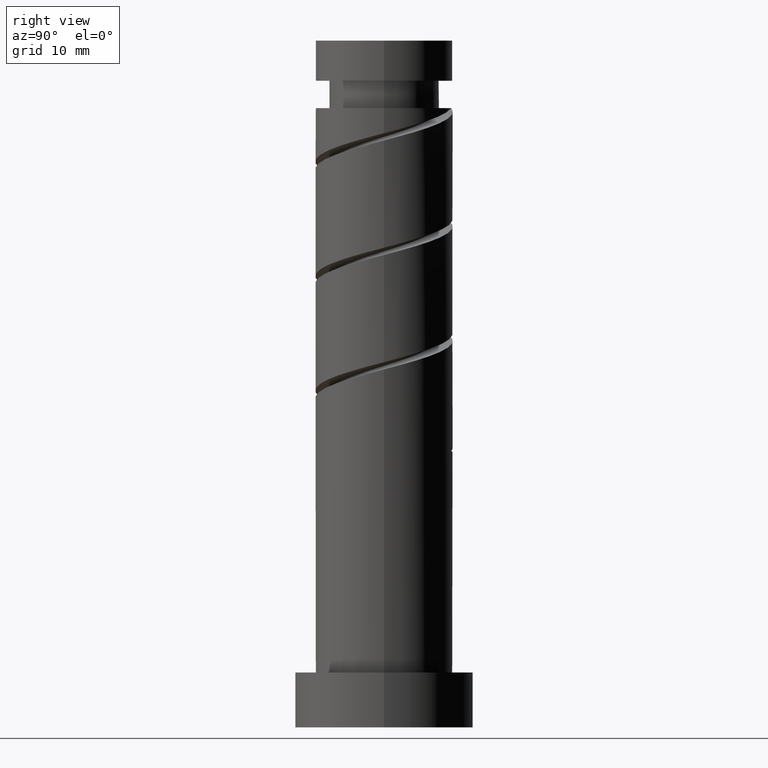
[diagram: clean part render]
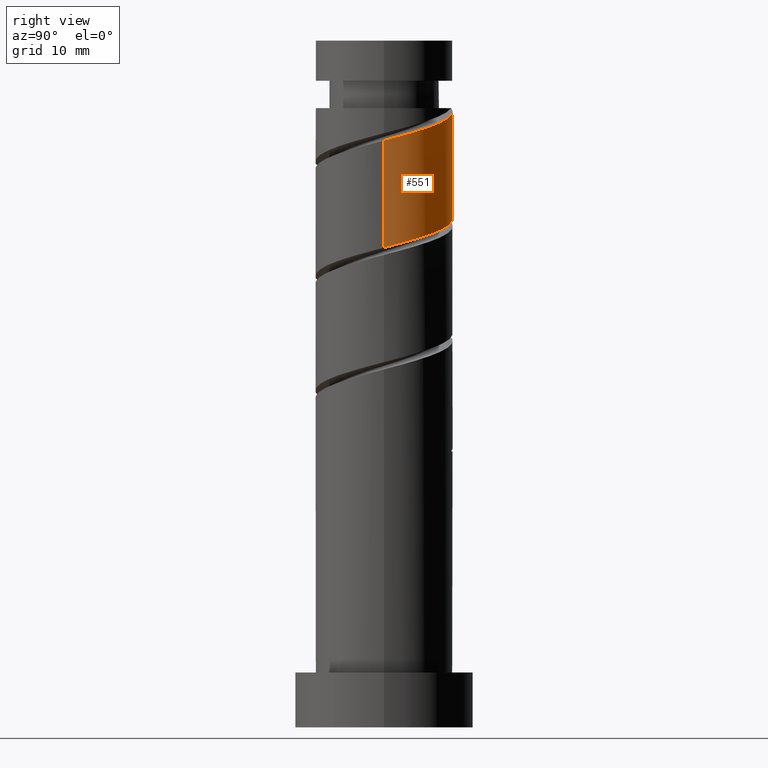
[diagram: same view with one face highlighted and labeled with its STEP entity id]
A machine part, right view. The second image highlights one B-rep face of the part: STEP entity #551.
In plain terms, the highlighted cylindrical surface (partial cylindrical patch) has radius 10 mm, axis along (-0, -0, -1).
Its self-contained STEP definition (entity closure, byte-faithful):
#32 = DIRECTION ( 'NONE',  ( -0.000000000000000000, -0.000000000000000000, -1.000000000000000000 ) ) ;
#43 = CARTESIAN_POINT ( 'NONE',  ( 9.482036394194121698, 3.176631206038592392, 70.71845286771375072 ) ) ;
#55 = CARTESIAN_POINT ( 'NONE',  ( -1.989974874213303657, 9.799999999999956302, 90.16289731215825043 ) ) ;
#58 = CARTESIAN_POINT ( 'NONE',  ( 10.00000000000000178, 2.987793309378759097E-17, 69.86041886714697569 ) ) ;
#96 = CYLINDRICAL_SURFACE ( 'NONE', #896, 10.00000000000000178 ) ;
#136 = EDGE_CURVE ( 'NONE', #1063, #407, #659, .T. ) ;
#139 = ORIENTED_EDGE ( 'NONE', *, *, #401, .T. ) ;
#150 = CARTESIAN_POINT ( 'NONE',  ( -8.659940141538765346, 5.302316206861111603, 76.73697138623226977 ) ) ;
#169 = CARTESIAN_POINT ( 'NONE',  ( 0.2619704632702842817, 10.15088626125573157, 73.95919360845449830 ) ) ;
#211 = EDGE_CURVE ( 'NONE', #1063, #219, #947, .T. ) ;
#219 = VERTEX_POINT ( 'NONE', #1215 ) ;
#267 = CARTESIAN_POINT ( 'NONE',  ( 7.823727769265528487, 6.228104349834182152, 71.64437879363967454 ) ) ;
#293 = CARTESIAN_POINT ( 'NONE',  ( -7.492061519980879325, 6.623368793961411427, 76.27400842326930785 ) ) ;
#312 = DIRECTION ( 'NONE',  ( -0.000000000000000000, -0.000000000000000000, -1.000000000000000000 ) ) ;
#356 = CARTESIAN_POINT ( 'NONE',  ( 7.492061519980892648, 6.623368793961422973, 87.38511953438043633 ) ) ;
#370 = CARTESIAN_POINT ( 'NONE',  ( 6.725544933722014562, 7.607638645273746114, 72.10734175660267908 ) ) ;
#401 = EDGE_CURVE ( 'NONE', #809, #1276, #632, .T. ) ;
#407 = VERTEX_POINT ( 'NONE', #55 ) ;
#441 = CARTESIAN_POINT ( 'NONE',  ( 10.00000000000001954, 0.1290167433202204506, 85.49939313110182582 ) ) ;
#472 = CARTESIAN_POINT ( 'NONE',  ( -1.989974874213303657, 9.799999999999956302, 90.16289731215825043 ) ) ;
#479 = VECTOR ( 'NONE', #511, 1000.000000000000000 ) ;
#511 = DIRECTION ( 'NONE',  ( -0.000000000000000000, -0.000000000000000000, -1.000000000000000000 ) ) ;
#515 = CARTESIAN_POINT ( 'NONE',  ( 1.989974874213243261, 9.799999999999998934, 73.49623064549153639 ) ) ;
#551 = ADVANCED_FACE ( 'NONE', ( #679 ), #96, .T. ) ;
#598 = CARTESIAN_POINT ( 'NONE',  ( 3.717979285156200131, 9.449113738744278734, 73.03326768252858869 ) ) ;
#632 = LINE ( 'NONE', #1088, #479 ) ;
#636 = CARTESIAN_POINT ( 'NONE',  ( -10.00000000000000355, 0.1290167433202021041, 78.15973482654793258 ) ) ;
#658 = ORIENTED_EDGE ( 'NONE', *, *, #136, .T. ) ;
#659 = CIRCLE ( 'NONE', #1382, 10.00000000000000355 ) ;
#679 = FACE_OUTER_BOUND ( 'NONE', #736, .T. ) ;
#685 = EDGE_CURVE ( 'NONE', #809, #407, #845, .T. ) ;
#690 = CARTESIAN_POINT ( 'NONE',  ( -0.2619704632702681835, 10.15088626125574400, 89.69993434919520325 ) ) ;
#715 = CARTESIAN_POINT ( 'NONE',  ( -10.00000000000000355, -5.004553793209421968E-15, 78.19375220048030428 ) ) ;
#723 = DIRECTION ( 'NONE',  ( -1.000000000000000000, 0.000000000000000000, 0.000000000000000000 ) ) ;
#724 = CARTESIAN_POINT ( 'NONE',  ( -10.00000000000000355, 0.000000000000000000, 90.16289731215820780 ) ) ;
#736 = EDGE_LOOP ( 'NONE', ( #973, #139, #1226, #1449, #658 ) ) ;
#740 = CARTESIAN_POINT ( 'NONE',  ( -6.324182898422996857, 7.944421381061713916, 75.81104546030634594 ) ) ;
#760 = DIRECTION ( 'NONE',  ( -1.000000000000000000, 0.000000000000000000, 0.000000000000000000 ) ) ;
#809 = VERTEX_POINT ( 'NONE', #1383 ) ;
#814 = CARTESIAN_POINT ( 'NONE',  ( 4.774909380590658614, 8.786366735297804098, 88.31104546030637437 ) ) ;
#825 = CARTESIAN_POINT ( 'NONE',  ( 10.00000000000000533, 1.630543718204560344, 70.29033837951260466 ) ) ;
#836 = DIRECTION ( 'NONE',  ( -0.000000000000000000, -0.000000000000000000, -1.000000000000000000 ) ) ;
#837 = CARTESIAN_POINT ( 'NONE',  ( -4.774909380590645291, 8.786366735297784558, 75.34808249734338403 ) ) ;
#842 = VECTOR ( 'NONE', #32, 1000.000000000000000 ) ;
#845 =( BOUNDED_CURVE ( )  B_SPLINE_CURVE ( 2, ( #1472, #441, #906, #1361, #1375, #1159, #356, #1482, #814, #1146, #938, #690, #472 ),
 .UNSPECIFIED., .F., .T. ) 
 B_SPLINE_CURVE_WITH_KNOTS ( ( 3, 2, 2, 2, 2, 2, 3 ),
 ( 0.6795248053855291737, 0.6805555555555555802, 0.6944444444444444198, 0.7083333333333332593, 0.7222222222222220989, 0.7361111111111110494, 0.7499999999999998890 ),
 .UNSPECIFIED. ) 
 CURVE ( )  GEOMETRIC_REPRESENTATION_ITEM ( )  RATIONAL_B_SPLINE_CURVE ( ( 0.9071930855141271399, 0.9080659294509747514, 0.9090909090909147228, 0.8952797754656494078, 0.9090909090909147228, 0.8952797754656494078, 0.9090909090909147228, 0.8952797754656494078, 0.9090909090909147228, 0.8952797754656494078, 0.9090909090909147228, 0.8952797754656495188, 0.9090909090909146117 ) ) 
 REPRESENTATION_ITEM ( '' )  );
#858 = CARTESIAN_POINT ( 'NONE',  ( -1.481832699744005000, 9.889599175394797825, 74.42215657141747442 ) ) ;
#896 = AXIS2_PLACEMENT_3D ( 'NONE', #1348, #312, #760 ) ;
#900 = CARTESIAN_POINT ( 'NONE',  ( 0.000000000000000000, 0.000000000000000000, 90.16289731215820780 ) ) ;
#906 = CARTESIAN_POINT ( 'NONE',  ( 9.996671490029767071, 0.2579905432887747430, 85.53326768252858869 ) ) ;
#928 = EDGE_CURVE ( 'NONE', #219, #1276, #1262, .T. ) ;
#938 = CARTESIAN_POINT ( 'NONE',  ( 1.481832699744016990, 9.889599175394813813, 89.23697138623228398 ) ) ;
#947 = LINE ( 'NONE', #1285, #842 ) ;
#973 = ORIENTED_EDGE ( 'NONE', *, *, #685, .F. ) ;
#981 = CARTESIAN_POINT ( 'NONE',  ( 8.921910604809047740, 4.848570054394621742, 71.18141583067672684 ) ) ;
#1063 = VERTEX_POINT ( 'NONE', #724 ) ;
#1088 = CARTESIAN_POINT ( 'NONE',  ( 10.00000000000000178, 1.224646799147353454E-15, 100.0000000000000000 ) ) ;
#1146 = CARTESIAN_POINT ( 'NONE',  ( 3.225635862758307493, 9.628312089533874740, 88.77400842326930785 ) ) ;
#1159 = CARTESIAN_POINT ( 'NONE',  ( 8.659940141538777780, 5.302316206861112491, 86.92215657141743179 ) ) ;
#1186 = CARTESIAN_POINT ( 'NONE',  ( -9.996671490029745755, 0.2579905432887760752, 78.12586027512115550 ) ) ;
#1192 = CARTESIAN_POINT ( 'NONE',  ( -9.305560469009531488, 3.661494825560611233, 77.19993434919521746 ) ) ;
#1215 = CARTESIAN_POINT ( 'NONE',  ( -10.00000000000000355, -5.004553793209422757E-15, 78.19375220048030428 ) ) ;
#1226 = ORIENTED_EDGE ( 'NONE', *, *, #928, .F. ) ;
#1262 =( BOUNDED_CURVE ( )  B_SPLINE_CURVE ( 2, ( #715, #636, #1186, #1414, #1192, #150, #293, #740, #837, #1405, #858, #169, #515, #598, #1322, #370, #267, #981, #43, #825, #58 ),
 .UNSPECIFIED., .F., .T. ) 
 B_SPLINE_CURVE_WITH_KNOTS ( ( 3, 2, 2, 2, 2, 2, 2, 2, 2, 2, 3 ),
 ( 0.4295248053855290071, 0.4305555555555555802, 0.4444444444444444198, 0.4583333333333333148, 0.4722222222222222099, 0.4861111111111111049, 0.5000000000000000000, 0.5138888888888888395, 0.5277777777777777901, 0.5416666666666666297, 0.5545248053855290626 ),
 .UNSPECIFIED. ) 
 CURVE ( )  GEOMETRIC_REPRESENTATION_ITEM ( )  RATIONAL_B_SPLINE_CURVE ( ( 0.9071930855141201455, 0.9080659294509678681, 0.9090909090909080614, 0.8952797754656425244, 0.9090909090909080614, 0.8952797754656425244, 0.9090909090909080614, 0.8952797754656425244, 0.9090909090909080614, 0.8952797754656425244, 0.9090909090909080614, 0.8952797754656425244, 0.9090909090909080614, 0.8952797754656425244, 0.9090909090909080614, 0.8952797754656425244, 0.9090909090909080614, 0.8952797754656425244, 0.9090909090909080614, 0.8963047551055826068, 0.9071930855141203676 ) ) 
 REPRESENTATION_ITEM ( '' )  );
#1276 = VERTEX_POINT ( 'NONE', #1397 ) ;
#1285 = CARTESIAN_POINT ( 'NONE',  ( -10.00000000000000178, 0.000000000000000000, 100.0000000000000000 ) ) ;
#1322 = CARTESIAN_POINT ( 'NONE',  ( 5.221762109439108457, 8.528376192009005763, 72.57030471956558415 ) ) ;
#1348 = CARTESIAN_POINT ( 'NONE',  ( 0.000000000000000000, 0.000000000000000000, 100.0000000000000000 ) ) ;
#1361 = CARTESIAN_POINT ( 'NONE',  ( 9.951180796480318946, 2.020673444260113527, 85.99623064549155060 ) ) ;
#1375 = CARTESIAN_POINT ( 'NONE',  ( 9.305560469009556357, 3.661494825560613453, 86.45919360845448409 ) ) ;
#1382 = AXIS2_PLACEMENT_3D ( 'NONE', #900, #836, #723 ) ;
#1383 = CARTESIAN_POINT ( 'NONE',  ( 10.00000000000002132, 6.124976284226410123E-15, 85.46537575716946833 ) ) ;
#1397 = CARTESIAN_POINT ( 'NONE',  ( 10.00000000000000178, 2.987793309378759097E-17, 69.86041886714697569 ) ) ;
#1405 = CARTESIAN_POINT ( 'NONE',  ( -3.225635862758294170, 9.628312089533865858, 74.88511953438042212 ) ) ;
#1414 = CARTESIAN_POINT ( 'NONE',  ( -9.951180796480308288, 2.020673444260114415, 77.66289731215820780 ) ) ;
#1449 = ORIENTED_EDGE ( 'NONE', *, *, #211, .F. ) ;
#1472 = CARTESIAN_POINT ( 'NONE',  ( 10.00000000000002132, 6.124976284226409334E-15, 85.46537575716946833 ) ) ;
#1482 = CARTESIAN_POINT ( 'NONE',  ( 6.324182898423010180, 7.944421381061723686, 87.84808249734336982 ) ) ;